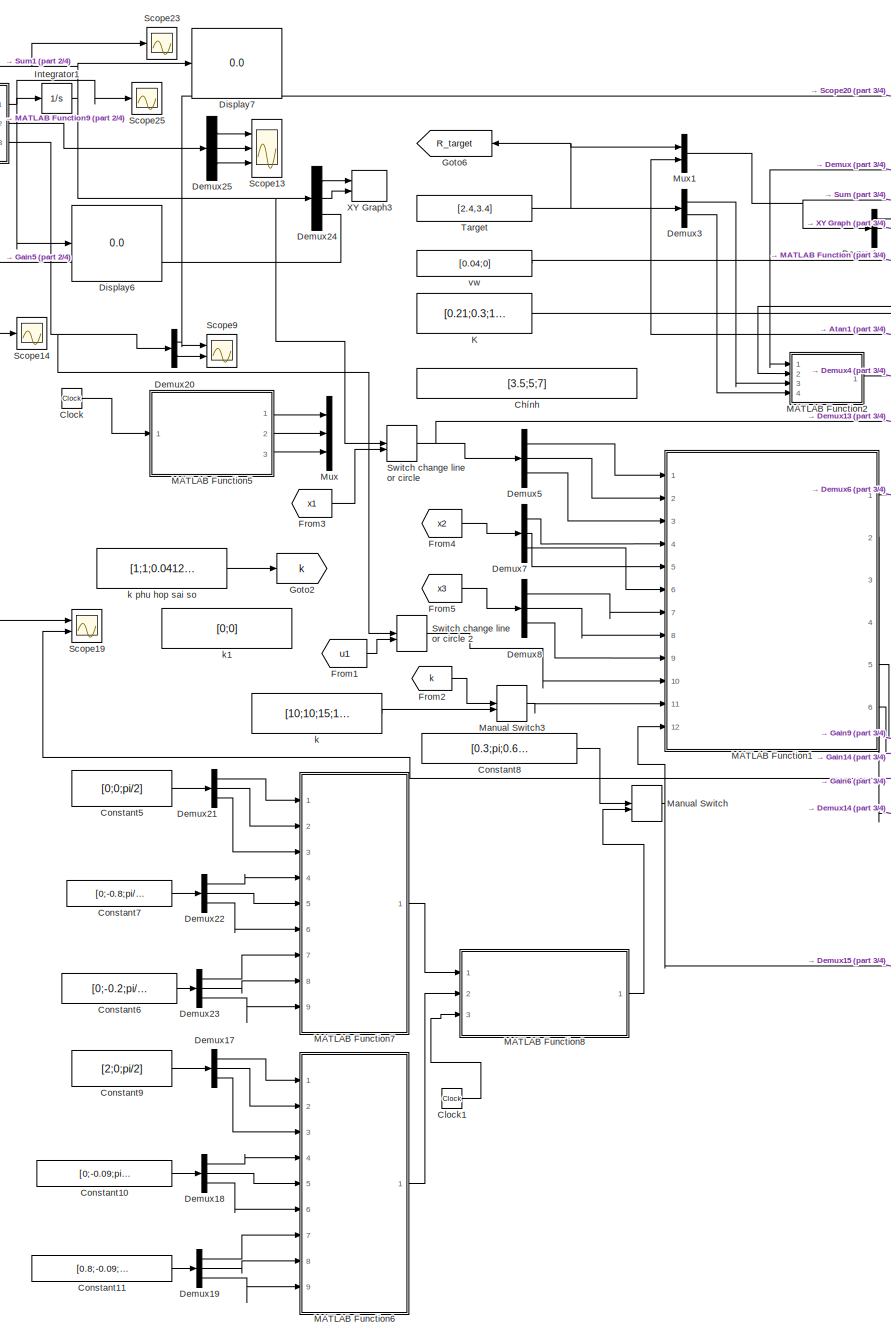
[diagram: root canvas - part 1/4, center side, full height]
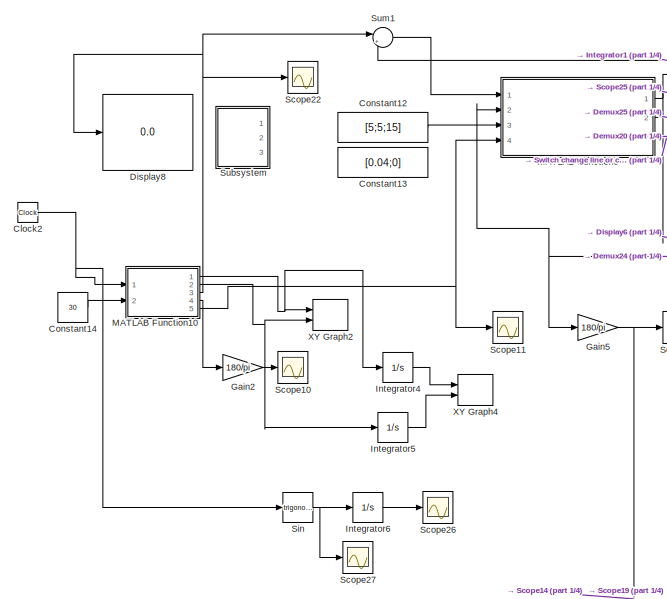
[diagram: root canvas - part 2/4, top left region]
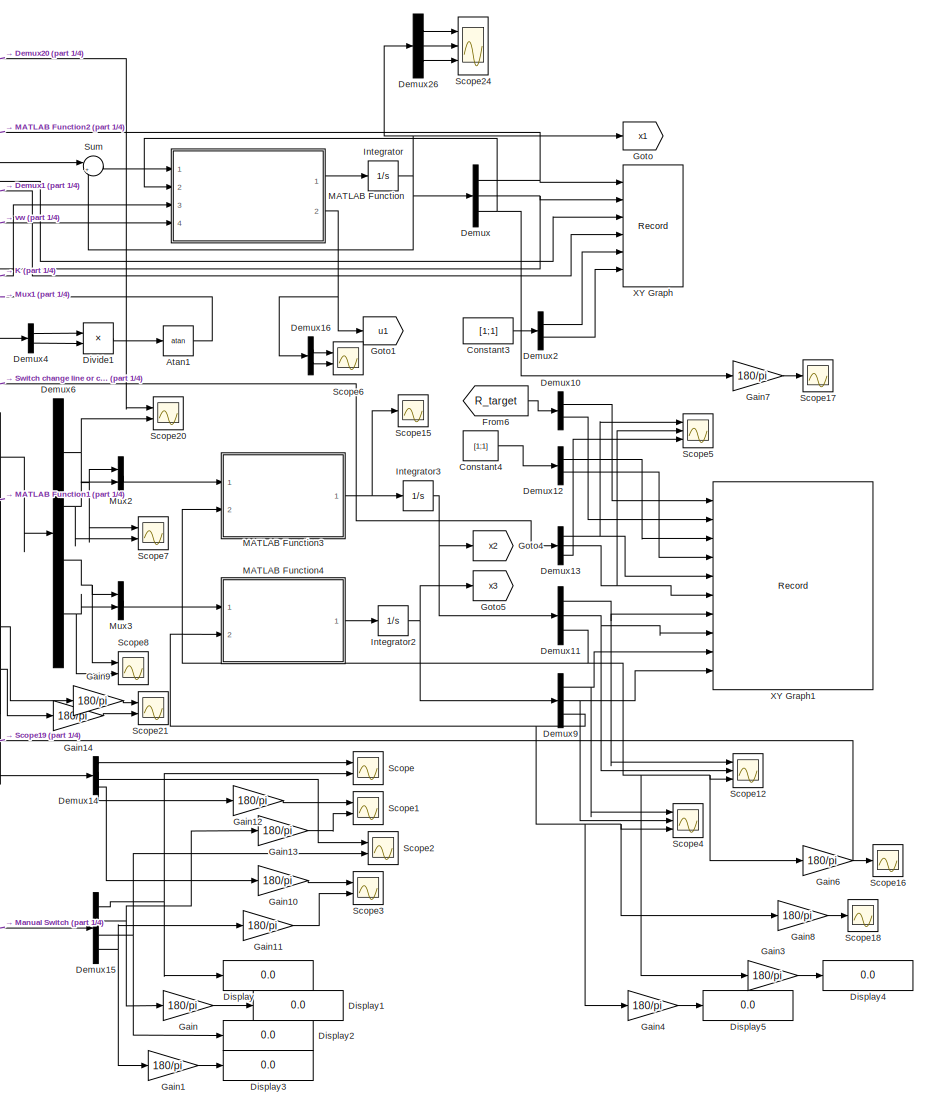
[diagram: root canvas - part 3/4, right side, full height]
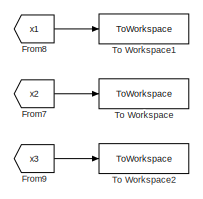
[diagram: root canvas - part 4/4, middle right region]
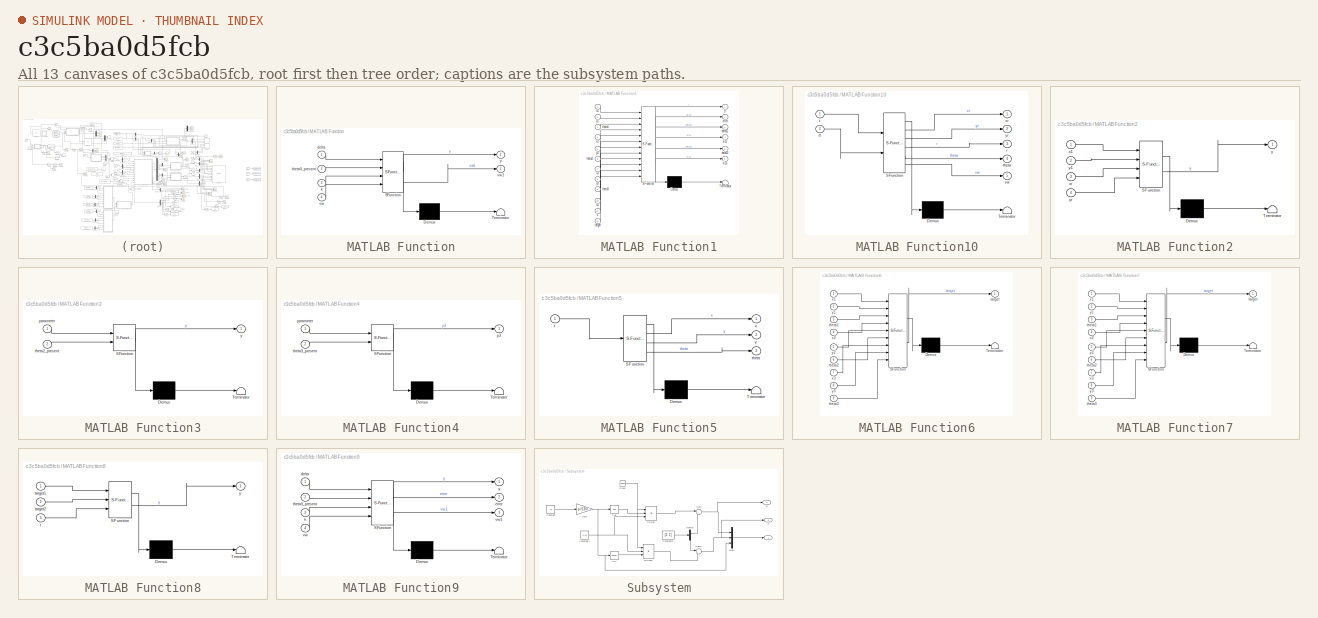
[diagram: thumbnail index - all 13 canvases of the model, root first then tree order]
MODEL slx_c3c5ba0d5fcb
KIND model
CONFIG AbsTol = auto
CONFIG EnableMultiTasking = off
CONFIG FixedStep = 0.01
CONFIG MaxStep = auto
CONFIG MinStep = auto
CONFIG RelTol = 1e-3
CONFIG SampleTimeConstraint = Unconstrained
CONFIG SolverName = FixedStepAuto
CONFIG StartTime = 0.0
CONFIG StopTime = 40
BLOCK [Trigonometry] Atan1
  Operator = atan
  Ports = [1, 1]
BLOCK [Constant] Chính
  Value = [3.5;5;7]
BLOCK [Clock] Clock
BLOCK [Clock] Clock1
BLOCK [Clock] Clock2
BLOCK [Constant] Constant10
  Value = [0;-0.09;pi/2]
BLOCK [Constant] Constant11
  Value = [0.8;-0.09;pi/2]
BLOCK [Constant] Constant12
  Value = [5;5;15]
BLOCK [Constant] Constant13
  Value = [0.04;0]
BLOCK [Constant] Constant14
  Value = 30
BLOCK [Constant] Constant3
  Value = [1;1]
BLOCK [Constant] Constant4
  Value = [1;1]
BLOCK [Constant] Constant5
  Value = [0;0;pi/2]
BLOCK [Constant] Constant6
  Value = [0;-0.2;pi/2]
BLOCK [Constant] Constant7
  Value = [0;-0.8;pi/2]
BLOCK [Constant] Constant8
  Value = [0.3;pi;0.6;0.21]
BLOCK [Constant] Constant9
  Value = [2;0;pi/2]
BLOCK [Demux] Demux
  Outputs = 3
  Ports = [1, 3]
BLOCK [Demux] Demux1
  Outputs = 3
  Ports = [1, 3]
BLOCK [Demux] Demux10
  Outputs = 2
  Ports = [1, 2]
BLOCK [Demux] Demux11
  Outputs = 3
  Ports = [1, 3]
BLOCK [Demux] Demux12
  Outputs = 2
  Ports = [1, 2]
BLOCK [Demux] Demux13
  Outputs = 3
  Ports = [1, 3]
BLOCK [Demux] Demux14
  Ports = [1, 4]
BLOCK [Demux] Demux15
  Ports = [1, 4]
BLOCK [Demux] Demux16
  Outputs = 2
  Ports = [1, 2]
BLOCK [Demux] Demux17
  Outputs = 3
  Ports = [1, 3]
BLOCK [Demux] Demux18
  Outputs = 3
  Ports = [1, 3]
BLOCK [Demux] Demux19
  Outputs = 3
  Ports = [1, 3]
BLOCK [Demux] Demux2
  Outputs = 2
  Ports = [1, 2]
BLOCK [Demux] Demux20
  Outputs = 2
  Ports = [1, 2]
BLOCK [Demux] Demux21
  Outputs = 3
  Ports = [1, 3]
BLOCK [Demux] Demux22
  Outputs = 3
  Ports = [1, 3]
BLOCK [Demux] Demux23
  Outputs = 3
  Ports = [1, 3]
BLOCK [Demux] Demux24
  Outputs = 3
  Ports = [1, 3]
BLOCK [Demux] Demux25
  Outputs = 3
  Ports = [1, 3]
BLOCK [Demux] Demux26
  Outputs = 3
  Ports = [1, 3]
BLOCK [Demux] Demux3
  Outputs = 2
  Ports = [1, 2]
BLOCK [Demux] Demux4
  Outputs = 2
  Ports = [1, 2]
BLOCK [Demux] Demux5
  Outputs = 3
  Ports = [1, 3]
BLOCK [Demux] Demux6
  Ports = [1, 4]
BLOCK [Demux] Demux7
  Outputs = 3
  Ports = [1, 3]
BLOCK [Demux] Demux8
  Outputs = 3
  Ports = [1, 3]
BLOCK [Demux] Demux9
  Outputs = 3
  Ports = [1, 3]
BLOCK [Display] Display
  Decimation = 1
  Ports = [1]
BLOCK [Display] Display1
  Decimation = 1
  Ports = [1]
BLOCK [Display] Display2
  Decimation = 1
  Ports = [1]
BLOCK [Display] Display3
  Decimation = 1
  Ports = [1]
BLOCK [Display] Display4
  Decimation = 1
  Ports = [1]
BLOCK [Display] Display5
  Decimation = 1
  Ports = [1]
BLOCK [Display] Display6
  Decimation = 1
  Ports = [1]
BLOCK [Display] Display7
  Decimation = 1
  Ports = [1]
BLOCK [Display] Display8
  Decimation = 1
  Ports = [1]
BLOCK [Product] Divide1
  Inputs = /*
  Ports = [2, 1]
BLOCK [From] From1
  GotoTag = u1
BLOCK [From] From2
  GotoTag = k
BLOCK [From] From3
  GotoTag = x1
BLOCK [From] From4
  GotoTag = x2
BLOCK [From] From5
  GotoTag = x3
BLOCK [From] From6
  GotoTag = R_target
BLOCK [From] From7
  GotoTag = x2
BLOCK [From] From8
  GotoTag = x1
BLOCK [From] From9
  GotoTag = x3
BLOCK [Gain] Gain
  Gain = 180/pi
BLOCK [Gain] Gain1
  Gain = 180/pi
BLOCK [Gain] Gain10
  Gain = 180/pi
BLOCK [Gain] Gain11
  Gain = 180/pi
BLOCK [Gain] Gain12
  Gain = 180/pi
BLOCK [Gain] Gain13
  Gain = 180/pi
BLOCK [Gain] Gain14
  Gain = 180/pi
BLOCK [Gain] Gain2
  Gain = 180/pi
BLOCK [Gain] Gain3
  Gain = 180/pi
BLOCK [Gain] Gain4
  Gain = 180/pi
BLOCK [Gain] Gain5
  Gain = 180/pi
BLOCK [Gain] Gain6
  Gain = 180/pi
BLOCK [Gain] Gain7
  Gain = 180/pi
BLOCK [Gain] Gain8
  Gain = 180/pi
BLOCK [Gain] Gain9
  Gain = 180/pi
BLOCK [Goto] Goto
  GotoTag = x1
BLOCK [Goto] Goto1
  GotoTag = u1
BLOCK [Goto] Goto2
  GotoTag = k
BLOCK [Goto] Goto4
  GotoTag = x2
BLOCK [Goto] Goto5
  GotoTag = x3
BLOCK [Goto] Goto6
  GotoTag = R_target
  NameLocation = top
BLOCK [Integrator] Integrator
  InitialCondition = [1;1;atan(2.4/1.4)]
  Ports = [1, 1]
BLOCK [Integrator] Integrator1
  InitialCondition = [3;0;pi/2]
  Ports = [1, 1]
BLOCK [Integrator] Integrator2
  InitialCondition = [0.8;-0.09;pi/2]
  Ports = [1, 1]
BLOCK [Integrator] Integrator3
  InitialCondition = [0.1;-0.09;pi/2]
  Ports = [1, 1]
BLOCK [Integrator] Integrator4
  InitialCondition = [0;0]
  Ports = [1, 1]
BLOCK [Integrator] Integrator5
  InitialCondition = [0;0]
  Ports = [1, 1]
BLOCK [Integrator] Integrator6
  InitialCondition = [0;0]
  Ports = [1, 1]
BLOCK [Constant] K
  Value = [0.21;0.3;1.25]
BLOCK [SubSystem] MATLAB Function
  ErrorFcn = Stateflow.Translate.translate
  PermitHierarchicalResolution = ExplicitOnly
  Ports = [4, 2]
  RequestExecContextInheritance = off
  SFBlockType = MATLAB Function
  TreatAsAtomicUnit = on
BLOCK [Demux] MATLAB Function/ Demux 
  Outputs = 1
  Ports = [1, 1]
BLOCK [S-Function] MATLAB Function/ SFunction 
  EnableBusSupport = on
  FunctionName = sf_sfun
  PortCounts = [4 3]
  Ports = [4, 3]
  SFcnIsStateOwnerBlock = off
  SFunctionDeploymentMode = off
  Tag = Stateflow S-Function 2
BLOCK [Terminator] MATLAB Function/ Terminator 
BLOCK [Inport] MATLAB Function/delta
BLOCK [Inport] MATLAB Function/k
  Port = 3
BLOCK [Inport] MATLAB Function/theta0_present
  Port = 2
BLOCK [Inport] MATLAB Function/vw
  Port = 4
BLOCK [Outport] MATLAB Function/vw1
  Port = 2
BLOCK [Outport] MATLAB Function/y
  VectorParamsAs1DForOutWhenUnconnected = off
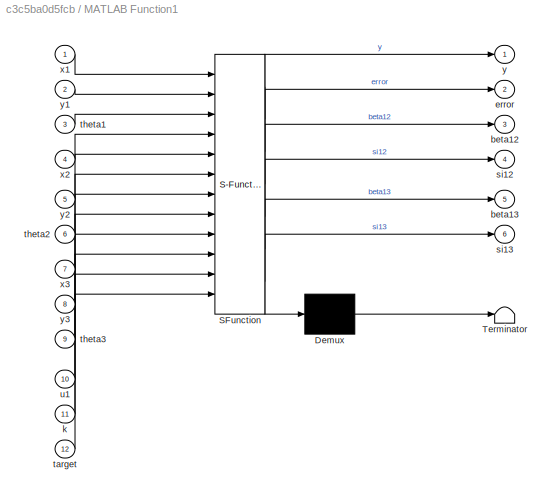
BLOCK [SubSystem] MATLAB Function1
  ErrorFcn = Stateflow.Translate.translate
  PermitHierarchicalResolution = ExplicitOnly
  Ports = [12, 6]
  RequestExecContextInheritance = off
  SFBlockType = MATLAB Function
  TreatAsAtomicUnit = on
BLOCK [Demux] MATLAB Function1/ Demux 
  Outputs = 1
  Ports = [1, 1]
BLOCK [S-Function] MATLAB Function1/ SFunction 
  EnableBusSupport = on
  FunctionName = sf_sfun
  PortCounts = [12 7]
  Ports = [12, 7]
  SFcnIsStateOwnerBlock = off
  SFunctionDeploymentMode = off
  Tag = Stateflow S-Function 1
BLOCK [Terminator] MATLAB Function1/ Terminator 
BLOCK [Outport] MATLAB Function1/beta12
  Port = 3
BLOCK [Outport] MATLAB Function1/beta13
  Port = 5
BLOCK [Outport] MATLAB Function1/error
  Port = 2
BLOCK [Inport] MATLAB Function1/k
  Port = 11
BLOCK [Outport] MATLAB Function1/si12
  Port = 4
BLOCK [Outport] MATLAB Function1/si13
  Port = 6
BLOCK [Inport] MATLAB Function1/target
  Port = 12
BLOCK [Inport] MATLAB Function1/theta1
  Port = 3
BLOCK [Inport] MATLAB Function1/theta2
  Port = 6
BLOCK [Inport] MATLAB Function1/theta3
  Port = 9
BLOCK [Inport] MATLAB Function1/u1
  Port = 10
BLOCK [Inport] MATLAB Function1/x1
BLOCK [Inport] MATLAB Function1/x2
  Port = 4
BLOCK [Inport] MATLAB Function1/x3
  Port = 7
BLOCK [Outport] MATLAB Function1/y
  VectorParamsAs1DForOutWhenUnconnected = off
BLOCK [Inport] MATLAB Function1/y1
  Port = 2
BLOCK [Inport] MATLAB Function1/y2
  Port = 5
BLOCK [Inport] MATLAB Function1/y3
  Port = 8
BLOCK [SubSystem] MATLAB Function10
  ErrorFcn = Stateflow.Translate.translate
  PermitHierarchicalResolution = ExplicitOnly
  Ports = [2, 5]
  RequestExecContextInheritance = off
  SFBlockType = MATLAB Function
  TreatAsAtomicUnit = on
BLOCK [Demux] MATLAB Function10/ Demux 
  Outputs = 1
  Ports = [1, 1]
BLOCK [S-Function] MATLAB Function10/ SFunction 
  EnableBusSupport = on
  FunctionName = sf_sfun
  PortCounts = [2 6]
  Ports = [2, 6]
  SFcnIsStateOwnerBlock = off
  SFunctionDeploymentMode = off
  Tag = Stateflow S-Function 9
BLOCK [Terminator] MATLAB Function10/ Terminator 
BLOCK [Outport] MATLAB Function10/r
  Port = 3
BLOCK [Inport] MATLAB Function10/t
BLOCK [Inport] MATLAB Function10/tf
  Port = 2
BLOCK [Outport] MATLAB Function10/theta
  Port = 4
BLOCK [Outport] MATLAB Function10/vw
  Port = 5
BLOCK [Outport] MATLAB Function10/xr
BLOCK [Outport] MATLAB Function10/yr
  Port = 2
BLOCK [SubSystem] MATLAB Function2
  ErrorFcn = Stateflow.Translate.translate
  PermitHierarchicalResolution = ExplicitOnly
  Ports = [4, 1]
  RequestExecContextInheritance = off
  SFBlockType = MATLAB Function
  TreatAsAtomicUnit = on
BLOCK [Demux] MATLAB Function2/ Demux 
  Outputs = 1
  Ports = [1, 1]
BLOCK [S-Function] MATLAB Function2/ SFunction 
  EnableBusSupport = on
  FunctionName = sf_sfun
  PortCounts = [4 2]
  Ports = [4, 2]
  SFcnIsStateOwnerBlock = off
  SFunctionDeploymentMode = off
  Tag = Stateflow S-Function 3
BLOCK [Terminator] MATLAB Function2/ Terminator 
BLOCK [Inport] MATLAB Function2/x1
BLOCK [Inport] MATLAB Function2/xr
  Port = 3
BLOCK [Outport] MATLAB Function2/y
  VectorParamsAs1DForOutWhenUnconnected = off
BLOCK [Inport] MATLAB Function2/y1
  Port = 2
BLOCK [Inport] MATLAB Function2/yr
  Port = 4
BLOCK [SubSystem] MATLAB Function3
  ErrorFcn = Stateflow.Translate.translate
  PermitHierarchicalResolution = ExplicitOnly
  Ports = [2, 1]
  RequestExecContextInheritance = off
  SFBlockType = MATLAB Function
  TreatAsAtomicUnit = on
BLOCK [Demux] MATLAB Function3/ Demux 
  Outputs = 1
  Ports = [1, 1]
BLOCK [S-Function] MATLAB Function3/ SFunction 
  EnableBusSupport = on
  FunctionName = sf_sfun
  PortCounts = [2 2]
  Ports = [2, 2]
  SFcnIsStateOwnerBlock = off
  SFunctionDeploymentMode = off
  Tag = Stateflow S-Function 4
BLOCK [Terminator] MATLAB Function3/ Terminator 
BLOCK [Inport] MATLAB Function3/parameter
BLOCK [Inport] MATLAB Function3/theta2_present
  Port = 2
BLOCK [Outport] MATLAB Function3/y
  VectorParamsAs1DForOutWhenUnconnected = off
BLOCK [SubSystem] MATLAB Function4
  ErrorFcn = Stateflow.Translate.translate
  PermitHierarchicalResolution = ExplicitOnly
  Ports = [2, 1]
  RequestExecContextInheritance = off
  SFBlockType = MATLAB Function
  TreatAsAtomicUnit = on
BLOCK [Demux] MATLAB Function4/ Demux 
  Outputs = 1
  Ports = [1, 1]
BLOCK [S-Function] MATLAB Function4/ SFunction 
  EnableBusSupport = on
  FunctionName = sf_sfun
  PortCounts = [2 2]
  Ports = [2, 2]
  SFcnIsStateOwnerBlock = off
  SFunctionDeploymentMode = off
  Tag = Stateflow S-Function 5
BLOCK [Terminator] MATLAB Function4/ Terminator 
BLOCK [Inport] MATLAB Function4/parameter
BLOCK [Inport] MATLAB Function4/theta3_present
  Port = 2
BLOCK [Outport] MATLAB Function4/y3
  VectorParamsAs1DForOutWhenUnconnected = off
BLOCK [SubSystem] MATLAB Function5
  ErrorFcn = Stateflow.Translate.translate
  PermitHierarchicalResolution = ExplicitOnly
  Ports = [1, 3]
  RequestExecContextInheritance = off
  SFBlockType = MATLAB Function
  TreatAsAtomicUnit = on
BLOCK [Demux] MATLAB Function5/ Demux 
  Outputs = 1
  Ports = [1, 1]
BLOCK [S-Function] MATLAB Function5/ SFunction 
  EnableBusSupport = on
  FunctionName = sf_sfun
  PortCounts = [1 4]
  Ports = [1, 4]
  SFcnIsStateOwnerBlock = off
  SFunctionDeploymentMode = off
  Tag = Stateflow S-Function 6
BLOCK [Terminator] MATLAB Function5/ Terminator 
BLOCK [Inport] MATLAB Function5/t
BLOCK [Outport] MATLAB Function5/theta
  Port = 3
BLOCK [Outport] MATLAB Function5/x
BLOCK [Outport] MATLAB Function5/y
  Port = 2
  VectorParamsAs1DForOutWhenUnconnected = off
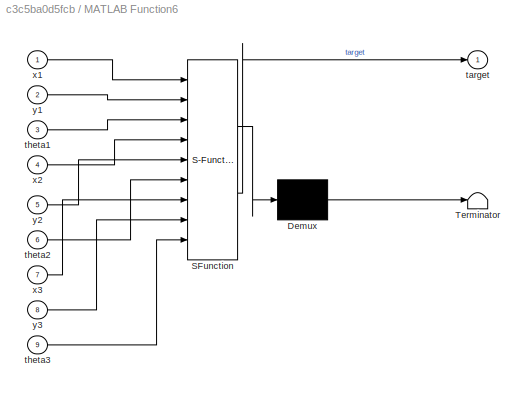
BLOCK [SubSystem] MATLAB Function6
  ErrorFcn = Stateflow.Translate.translate
  PermitHierarchicalResolution = ExplicitOnly
  Ports = [9, 1]
  RequestExecContextInheritance = off
  SFBlockType = MATLAB Function
  TreatAsAtomicUnit = on
BLOCK [Demux] MATLAB Function6/ Demux 
  Outputs = 1
  Ports = [1, 1]
BLOCK [S-Function] MATLAB Function6/ SFunction 
  EnableBusSupport = on
  FunctionName = sf_sfun
  PortCounts = [9 2]
  Ports = [9, 2]
  SFcnIsStateOwnerBlock = off
  SFunctionDeploymentMode = off
  Tag = Stateflow S-Function 7
BLOCK [Terminator] MATLAB Function6/ Terminator 
BLOCK [Outport] MATLAB Function6/target
  VectorParamsAs1DForOutWhenUnconnected = off
BLOCK [Inport] MATLAB Function6/theta1
  Port = 3
BLOCK [Inport] MATLAB Function6/theta2
  Port = 6
BLOCK [Inport] MATLAB Function6/theta3
  Port = 9
BLOCK [Inport] MATLAB Function6/x1
BLOCK [Inport] MATLAB Function6/x2
  Port = 4
BLOCK [Inport] MATLAB Function6/x3
  Port = 7
BLOCK [Inport] MATLAB Function6/y1
  Port = 2
BLOCK [Inport] MATLAB Function6/y2
  Port = 5
BLOCK [Inport] MATLAB Function6/y3
  Port = 8
BLOCK [SubSystem] MATLAB Function7
  ErrorFcn = Stateflow.Translate.translate
  PermitHierarchicalResolution = ExplicitOnly
  Ports = [9, 1]
  RequestExecContextInheritance = off
  SFBlockType = MATLAB Function
  TreatAsAtomicUnit = on
BLOCK [Demux] MATLAB Function7/ Demux 
  Outputs = 1
  Ports = [1, 1]
BLOCK [S-Function] MATLAB Function7/ SFunction 
  EnableBusSupport = on
  FunctionName = sf_sfun
  PortCounts = [9 2]
  Ports = [9, 2]
  SFcnIsStateOwnerBlock = off
  SFunctionDeploymentMode = off
  Tag = Stateflow S-Function 11
BLOCK [Terminator] MATLAB Function7/ Terminator 
BLOCK [Outport] MATLAB Function7/target
  VectorParamsAs1DForOutWhenUnconnected = off
BLOCK [Inport] MATLAB Function7/theta1
  Port = 3
BLOCK [Inport] MATLAB Function7/theta2
  Port = 6
BLOCK [Inport] MATLAB Function7/theta3
  Port = 9
BLOCK [Inport] MATLAB Function7/x1
BLOCK [Inport] MATLAB Function7/x2
  Port = 4
BLOCK [Inport] MATLAB Function7/x3
  Port = 7
BLOCK [Inport] MATLAB Function7/y1
  Port = 2
BLOCK [Inport] MATLAB Function7/y2
  Port = 5
BLOCK [Inport] MATLAB Function7/y3
  Port = 8
BLOCK [SubSystem] MATLAB Function8
  ErrorFcn = Stateflow.Translate.translate
  PermitHierarchicalResolution = ExplicitOnly
  Ports = [3, 1]
  RequestExecContextInheritance = off
  SFBlockType = MATLAB Function
  TreatAsAtomicUnit = on
BLOCK [Demux] MATLAB Function8/ Demux 
  Outputs = 1
  Ports = [1, 1]
BLOCK [S-Function] MATLAB Function8/ SFunction 
  EnableBusSupport = on
  FunctionName = sf_sfun
  PortCounts = [3 2]
  Ports = [3, 2]
  SFcnIsStateOwnerBlock = off
  SFunctionDeploymentMode = off
  Tag = Stateflow S-Function 8
BLOCK [Terminator] MATLAB Function8/ Terminator 
BLOCK [Inport] MATLAB Function8/t
  Port = 3
BLOCK [Inport] MATLAB Function8/target1
BLOCK [Inport] MATLAB Function8/target2
  Port = 2
BLOCK [Outport] MATLAB Function8/y
BLOCK [SubSystem] MATLAB Function9
  ErrorFcn = Stateflow.Translate.translate
  PermitHierarchicalResolution = ExplicitOnly
  Ports = [4, 3]
  RequestExecContextInheritance = off
  SFBlockType = MATLAB Function
  TreatAsAtomicUnit = on
BLOCK [Demux] MATLAB Function9/ Demux 
  Outputs = 1
  Ports = [1, 1]
BLOCK [S-Function] MATLAB Function9/ SFunction 
  EnableBusSupport = on
  FunctionName = sf_sfun
  PortCounts = [4 4]
  Ports = [4, 4]
  SFcnIsStateOwnerBlock = off
  SFunctionDeploymentMode = off
  Tag = Stateflow S-Function 10
BLOCK [Terminator] MATLAB Function9/ Terminator 
BLOCK [Inport] MATLAB Function9/delta
BLOCK [Outport] MATLAB Function9/error
  Port = 2
BLOCK [Inport] MATLAB Function9/k
  Port = 3
BLOCK [Inport] MATLAB Function9/theta0_present
  Port = 2
BLOCK [Inport] MATLAB Function9/vw
  Port = 4
BLOCK [Outport] MATLAB Function9/vw1
  Port = 3
BLOCK [Outport] MATLAB Function9/y
BLOCK [ManualSwitch] Manual Switch
  CurrentSetting = 0
BLOCK [ManualSwitch] Manual Switch3
  CurrentSetting = 0
BLOCK [Mux] Mux
  DisplayOption = bar
  Inputs = 3
  Ports = [3, 1]
BLOCK [Mux] Mux1
  DisplayOption = bar
  Inputs = 2
  Ports = [2, 1]
BLOCK [Mux] Mux2
  DisplayOption = bar
  Inputs = 2
  Ports = [2, 1]
BLOCK [Mux] Mux3
  DisplayOption = bar
  Inputs = 2
  Ports = [2, 1]
BLOCK [Scope] Scope
  Floating = off
  NumInputPorts = 2
  Ports = [2]
  ScopeSpecificationString = Simulink.scopes.TimeScopeBlockCfg('CurrentConfiguration', extmgr.ConfigurationSet(extmgr.Configuration('Core','General UI',true),extmgr.Configuration('Core','Source UI',true),extmgr.Configuration('Sources','WiredSimulink',true,'DataLoggingVariableName','ScopeData1'),extmgr.Configuration('Visuals','Time Domain',true,'SerializedDisplays',{struct('MinYLimReal','1.8793','MaxYLimReal','3.01341','YLabel...<+1447ch>
BLOCK [Scope] Scope1
  Floating = off
  NumInputPorts = 2
  Ports = [2]
  ScopeSpecificationString = Simulink.scopes.TimeScopeBlockCfg('CurrentConfiguration', extmgr.ConfigurationSet(extmgr.Configuration('Core','General UI',true),extmgr.Configuration('Core','Source UI',true),extmgr.Configuration('Sources','WiredSimulink',true,'DataLoggingVariableName','ScopeData2'),extmgr.Configuration('Visuals','Time Domain',true,'SerializedDisplays',{struct('MinYLimReal','88.7362','MaxYLimReal','93.69292','YLab...<+1453ch>
BLOCK [Scope] Scope10
  Floating = off
  NumInputPorts = 1
  Ports = [1]
  ScopeSpecificationString = Simulink.scopes.TimeScopeBlockCfg('CurrentConfiguration', extmgr.ConfigurationSet(extmgr.Configuration('Core','General UI',true),extmgr.Configuration('Core','Source UI',true),extmgr.Configuration('Sources','WiredSimulink',true,'DataLoggingVariableName','ScopeData4'),extmgr.Configuration('Visuals','Time Domain',true,'SerializedDisplays',{struct('MinYLimReal','45.00000','MaxYLimReal','495.00000','YL...<+1374ch>
BLOCK [Scope] Scope11
  Floating = off
  NumInputPorts = 1
  Ports = [1]
  ScopeSpecificationString = Simulink.scopes.TimeScopeBlockCfg('CurrentConfiguration', extmgr.ConfigurationSet(extmgr.Configuration('Core','General UI',true),extmgr.Configuration('Core','Source UI',true),extmgr.Configuration('Sources','WiredSimulink',true,'DataLoggingVariableName','ScopeData2'),extmgr.Configuration('Visuals','Time Domain',true,'SerializedDisplays',{struct('MinYLimReal','0.07854','MaxYLimReal','1.38754','YLabe...<+1481ch>
BLOCK [Scope] Scope12
  Floating = off
  NumInputPorts = 3
  Ports = [3]
  ScopeSpecificationString = Simulink.scopes.TimeScopeBlockCfg('CurrentConfiguration', extmgr.ConfigurationSet(extmgr.Configuration('Core','General UI',true),extmgr.Configuration('Core','Source UI',true),extmgr.Configuration('Sources','WiredSimulink',true,'DataLoggingVariableName','ScopeData1'),extmgr.Configuration('Visuals','Time Domain',true,'SerializedDisplays',{struct('MinYLimReal','-0.64294','MaxYLimReal','4.04423','YLab...<+1472ch>
BLOCK [Scope] Scope13
  Floating = off
  NumInputPorts = 3
  Ports = [3]
  ScopeSpecificationString = Simulink.scopes.TimeScopeBlockCfg('CurrentConfiguration', extmgr.ConfigurationSet(extmgr.Configuration('Core','General UI',true),extmgr.Configuration('Core','Source UI',true),extmgr.Configuration('Sources','WiredSimulink',true,'DataLoggingVariableName','ScopeData1'),extmgr.Configuration('Visuals','Time Domain',true,'SerializedDisplays',{struct('MinYLimReal','-3.55629','MaxYLimReal','2.00659','YLab...<+1392ch>
BLOCK [Scope] Scope14
  Floating = off
  NameLocation = right
  NumInputPorts = 1
  Ports = [1]
  ScopeSpecificationString = Simulink.scopes.TimeScopeBlockCfg('CurrentConfiguration', extmgr.ConfigurationSet(extmgr.Configuration('Core','General UI',true),extmgr.Configuration('Core','Source UI',true),extmgr.Configuration('Sources','WiredSimulink',true,'DataLoggingVariableName','ScopeData2'),extmgr.Configuration('Visuals','Time Domain',true,'SerializedDisplays',{struct('MinYLimReal','-3.95361','MaxYLimReal','501.15953','YL...<+1401ch>
BLOCK [Scope] Scope15
  Floating = off
  NumInputPorts = 1
  Ports = [1]
  ScopeSpecificationString = Simulink.scopes.TimeScopeBlockCfg('CurrentConfiguration', extmgr.ConfigurationSet(extmgr.Configuration('Core','General UI',true),extmgr.Configuration('Core','Source UI',true),extmgr.Configuration('Sources','WiredSimulink',true,'DataLoggingVariableName','ScopeData1'),extmgr.Configuration('Visuals','Time Domain',true,'SerializedDisplays',{struct('MinYLimReal','-63.15636','MaxYLimReal','333.6197','YL...<+1500ch>
BLOCK [Scope] Scope16
  Floating = off
  NumInputPorts = 1
  Ports = [1]
  ScopeSpecificationString = Simulink.scopes.TimeScopeBlockCfg('CurrentConfiguration', extmgr.ConfigurationSet(extmgr.Configuration('Core','General UI',true),extmgr.Configuration('Core','Source UI',true),extmgr.Configuration('Sources','WiredSimulink',true,'DataLoggingVariableName','ScopeData2'),extmgr.Configuration('Visuals','Time Domain',true,'SerializedDisplays',{struct('MinYLimReal','-272.29924','MaxYLimReal','130.25547','...<+1455ch>
BLOCK [Scope] Scope17
  Floating = off
  NumInputPorts = 1
  Ports = [1]
  ScopeSpecificationString = Simulink.scopes.TimeScopeBlockCfg('CurrentConfiguration', extmgr.ConfigurationSet(extmgr.Configuration('Core','General UI',true),extmgr.Configuration('Core','Source UI',true),extmgr.Configuration('Sources','WiredSimulink',true,'DataLoggingVariableName','ScopeData3'),extmgr.Configuration('Visuals','Time Domain',true,'SerializedDisplays',{struct('MinYLimReal','59.7435628364706','MaxYLimReal','59.743...<+1459ch>
BLOCK [Scope] Scope18
  Floating = off
  NumInputPorts = 1
  Ports = [1]
  ScopeSpecificationString = Simulink.scopes.TimeScopeBlockCfg('CurrentConfiguration', extmgr.ConfigurationSet(extmgr.Configuration('Core','General UI',true),extmgr.Configuration('Core','Source UI',true),extmgr.Configuration('Sources','WiredSimulink',true,'DataLoggingVariableName','ScopeData4'),extmgr.Configuration('Visuals','Time Domain',true,'SerializedDisplays',{struct('MinYLimReal','-15615391.36692','MaxYLimReal','4609000...<+1462ch>
BLOCK [Scope] Scope19
  Floating = off
  NumInputPorts = 2
  Ports = [2]
  ScopeSpecificationString = Simulink.scopes.TimeScopeBlockCfg('CurrentConfiguration', extmgr.ConfigurationSet(extmgr.Configuration('Core','General UI',true),extmgr.Configuration('Core','Source UI',true),extmgr.Configuration('Sources','WiredSimulink',true,'DataLoggingVariableName','ScopeData5'),extmgr.Configuration('Visuals','Time Domain',true,'SerializedDisplays',{struct('MinYLimReal','-68.57545','MaxYLimReal','511.51957','Y...<+1436ch>
BLOCK [Scope] Scope2
  Floating = off
  NumInputPorts = 2
  Ports = [2]
  ScopeSpecificationString = Simulink.scopes.TimeScopeBlockCfg('CurrentConfiguration', extmgr.ConfigurationSet(extmgr.Configuration('Core','General UI',true),extmgr.Configuration('Core','Source UI',true),extmgr.Configuration('Sources','WiredSimulink',true,'DataLoggingVariableName','ScopeData3'),extmgr.Configuration('Visuals','Time Domain',true,'SerializedDisplays',{struct('MinYLimReal','1.06727','MaxYLimReal','2.32586','YLabe...<+1451ch>
BLOCK [Scope] Scope20
  Floating = off
  NumInputPorts = 2
  Ports = [2]
  ScopeSpecificationString = Simulink.scopes.TimeScopeBlockCfg('CurrentConfiguration', extmgr.ConfigurationSet(extmgr.Configuration('Core','General UI',true),extmgr.Configuration('Core','Source UI',true),extmgr.Configuration('Sources','WiredSimulink',true,'DataLoggingVariableName','ScopeData6'),extmgr.Configuration('Visuals','Time Domain',true,'SerializedDisplays',{struct('MinYLimReal','0.85043','MaxYLimReal','1.30177','YLabe...<+1421ch>
BLOCK [Scope] Scope21
  Floating = off
  NumInputPorts = 2
  Ports = [2]
  ScopeSpecificationString = Simulink.scopes.TimeScopeBlockCfg('CurrentConfiguration', extmgr.ConfigurationSet(extmgr.Configuration('Core','General UI',true),extmgr.Configuration('Core','Source UI',true),extmgr.Configuration('Sources','WiredSimulink',true,'DataLoggingVariableName','ScopeData7'),extmgr.Configuration('Visuals','Time Domain',true,'SerializedDisplays',{struct('MinYLimReal','-412.01112','MaxYLimReal','985.50188','...<+1461ch>
BLOCK [Scope] Scope22
  Floating = off
  NumInputPorts = 1
  Ports = [1]
  ScopeSpecificationString = Simulink.scopes.TimeScopeBlockCfg('CurrentConfiguration', extmgr.ConfigurationSet(extmgr.Configuration('Core','General UI',true),extmgr.Configuration('Core','Source UI',true),extmgr.Configuration('Sources','WiredSimulink',true,'DataLoggingVariableName','ScopeData1'),extmgr.Configuration('Visuals','Time Domain',true,'SerializedDisplays',{struct('MinYLimReal','-7.73175','MaxYLimReal','9.58573','YLab...<+1428ch>
BLOCK [Scope] Scope23
  Floating = off
  NumInputPorts = 1
  Ports = [1]
  ScopeSpecificationString = Simulink.scopes.TimeScopeBlockCfg('CurrentConfiguration', extmgr.ConfigurationSet(extmgr.Configuration('Core','General UI',true),extmgr.Configuration('Core','Source UI',true),extmgr.Configuration('Sources','WiredSimulink',true,'DataLoggingVariableName','ScopeData2'),extmgr.Configuration('Visuals','Time Domain',true,'SerializedDisplays',{struct('MinYLimReal','-7.73303','MaxYLimReal','9.59844','YLab...<+1436ch>
BLOCK [Scope] Scope24
  Floating = off
  NumInputPorts = 3
  Ports = [3]
  ScopeSpecificationString = Simulink.scopes.TimeScopeBlockCfg('CurrentConfiguration', extmgr.ConfigurationSet(extmgr.Configuration('Core','General UI',true),extmgr.Configuration('Core','Source UI',true),extmgr.Configuration('Sources','WiredSimulink',true,'DataLoggingVariableName','ScopeData1'),extmgr.Configuration('Visuals','Time Domain',true,'SerializedDisplays',{struct('MinYLimReal','0.67951','MaxYLimReal','3.88445','YLabe...<+1422ch>
BLOCK [Scope] Scope25
  Floating = off
  NumInputPorts = 1
  Ports = [1]
  ScopeSpecificationString = Simulink.scopes.TimeScopeBlockCfg('CurrentConfiguration', extmgr.ConfigurationSet(extmgr.Configuration('Core','General UI',true),extmgr.Configuration('Core','Source UI',true),extmgr.Configuration('Sources','WiredSimulink',true,'DataLoggingVariableName','ScopeData1'),extmgr.Configuration('Visuals','Time Domain',true,'SerializedDisplays',{struct('MinYLimReal','-21.80897','MaxYLimReal','9.87956','YLa...<+1506ch>
BLOCK [Scope] Scope26
  Floating = off
  NumInputPorts = 1
  Ports = [1]
  ScopeSpecificationString = Simulink.scopes.TimeScopeBlockCfg('CurrentConfiguration', extmgr.ConfigurationSet(extmgr.Configuration('Core','General UI',true),extmgr.Configuration('Core','Source UI',true),extmgr.Configuration('Sources','WiredSimulink',true,'DataLoggingVariableName','ScopeData1'),extmgr.Configuration('Visuals','Time Domain',true,'SerializedDisplays',{struct('MinYLimReal','-1.25','MaxYLimReal','1.25','YLabelReal...<+1370ch>
BLOCK [Scope] Scope27
  Floating = off
  NumInputPorts = 1
  Ports = [1]
  ScopeSpecificationString = Simulink.scopes.TimeScopeBlockCfg('CurrentConfiguration', extmgr.ConfigurationSet(extmgr.Configuration('Core','General UI',true),extmgr.Configuration('Core','Source UI',true),extmgr.Configuration('Sources','WiredSimulink',true,'DataLoggingVariableName','ScopeData2'),extmgr.Configuration('Visuals','Time Domain',true,'SerializedDisplays',{struct('MinYLimReal','-1.25','MaxYLimReal','1.25','YLabelReal...<+1344ch>
BLOCK [Scope] Scope3
  Floating = off
  NumInputPorts = 2
  Ports = [2]
  ScopeSpecificationString = Simulink.scopes.TimeScopeBlockCfg('CurrentConfiguration', extmgr.ConfigurationSet(extmgr.Configuration('Core','General UI',true),extmgr.Configuration('Core','Source UI',true),extmgr.Configuration('Sources','WiredSimulink',true,'DataLoggingVariableName','ScopeData4'),extmgr.Configuration('Visuals','Time Domain',true,'SerializedDisplays',{struct('MinYLimReal','88.95911','MaxYLimReal','92.60585','YLa...<+1455ch>
BLOCK [Scope] Scope4
  Floating = off
  NumInputPorts = 3
  Ports = [3]
  ScopeSpecificationString = Simulink.scopes.TimeScopeBlockCfg('CurrentConfiguration', extmgr.ConfigurationSet(extmgr.Configuration('Core','General UI',true),extmgr.Configuration('Core','Source UI',true),extmgr.Configuration('Sources','WiredSimulink',true,'DataLoggingVariableName','ScopeData2'),extmgr.Configuration('Visuals','Time Domain',true,'SerializedDisplays',{struct('MinYLimReal','-7.76704','MaxYLimReal','6.18781','YLab...<+1443ch>
BLOCK [Scope] Scope5
  Floating = off
  NumInputPorts = 3
  Ports = [3]
  ScopeSpecificationString = Simulink.scopes.TimeScopeBlockCfg('CurrentConfiguration', extmgr.ConfigurationSet(extmgr.Configuration('Core','General UI',true),extmgr.Configuration('Core','Source UI',true),extmgr.Configuration('Sources','WiredSimulink',true,'DataLoggingVariableName','ScopeData3'),extmgr.Configuration('Visuals','Time Domain',true,'SerializedDisplays',{struct('MinYLimReal','0.76715','MaxYLimReal','8.80365','YLabe...<+1444ch>
BLOCK [Scope] Scope6
  Floating = off
  NumInputPorts = 2
  Ports = [2]
  ScopeSpecificationString = Simulink.scopes.TimeScopeBlockCfg('CurrentConfiguration', extmgr.ConfigurationSet(extmgr.Configuration('Core','General UI',true),extmgr.Configuration('Core','Source UI',true),extmgr.Configuration('Sources','WiredSimulink',true),extmgr.Configuration('Visuals','Time Domain',true,'SerializedDisplays',{struct('MinYLimReal','-0.07794','MaxYLimReal','0.70142','YLabelReal','','MinYLimMag','0.00000','MaxY...<+1341ch>
BLOCK [Scope] Scope7
  Floating = off
  NumInputPorts = 2
  Ports = [2]
  ScopeSpecificationString = Simulink.scopes.TimeScopeBlockCfg('CurrentConfiguration', extmgr.ConfigurationSet(extmgr.Configuration('Core','General UI',true),extmgr.Configuration('Core','Source UI',true),extmgr.Configuration('Sources','WiredSimulink',true,'DataLoggingVariableName','ScopeData7'),extmgr.Configuration('Visuals','Time Domain',true,'SerializedDisplays',{struct('MinYLimReal','-10.82803','MaxYLimReal','7.45225','YLa...<+1458ch>
BLOCK [Scope] Scope8
  Floating = off
  NumInputPorts = 2
  Ports = [2]
  ScopeSpecificationString = Simulink.scopes.TimeScopeBlockCfg('CurrentConfiguration', extmgr.ConfigurationSet(extmgr.Configuration('Core','General UI',true),extmgr.Configuration('Core','Source UI',true),extmgr.Configuration('Sources','WiredSimulink',true,'DataLoggingVariableName','ScopeData8'),extmgr.Configuration('Visuals','Time Domain',true,'SerializedDisplays',{struct('MinYLimReal','-1346.25979','MaxYLimReal','1472.75001'...<+1476ch>
BLOCK [Scope] Scope9
  Floating = off
  NumInputPorts = 2
  Ports = [2]
  ScopeSpecificationString = Simulink.scopes.TimeScopeBlockCfg('CurrentConfiguration', extmgr.ConfigurationSet(extmgr.Configuration('Core','General UI',true),extmgr.Configuration('Core','Source UI',true),extmgr.Configuration('Sources','WiredSimulink',true,'DataLoggingVariableName','ScopeData1'),extmgr.Configuration('Visuals','Time Domain',true,'SerializedDisplays',{struct('MinYLimReal','-22.00037','MaxYLimReal','11.60215','YL...<+1463ch>
BLOCK [Trigonometry] Sin
  Ports = [1, 1]
BLOCK [SubSystem] Subsystem
  Ports = [0, 3]
  RequestExecContextInheritance = off
BLOCK [Clock] Subsystem/Clock
BLOCK [Constant] Subsystem/Constant
  Value = 45
BLOCK [Constant] Subsystem/Constant1
  Value = 0.04
BLOCK [Constant] Subsystem/Constant2
  Value = [2 1]
BLOCK [Trigonometry] Subsystem/Cos
  Operator = cos
  Ports = [1, 1]
BLOCK [Demux] Subsystem/Demux
  Outputs = 2
  Ports = [1, 2]
BLOCK [Product] Subsystem/Divide
  Inputs = ***
  Ports = [3, 1]
BLOCK [Product] Subsystem/Divide1
  Inputs = ***
  Ports = [3, 1]
BLOCK [Gain] Subsystem/Gain
  Gain = pi/180
BLOCK [Mux] Subsystem/Mux1
  DisplayOption = bar
  Inputs = 3
  Ports = [3, 1]
BLOCK [Trigonometry] Subsystem/Sin
  Ports = [1, 1]
BLOCK [Sum] Subsystem/Sum
  Inputs = |++
  Ports = [2, 1]
BLOCK [Sum] Subsystem/Sum1
  Inputs = |++
  Ports = [2, 1]
BLOCK [Outport] Subsystem/r
BLOCK [Outport] Subsystem/xr
  Port = 2
BLOCK [Outport] Subsystem/yr
  Port = 3
BLOCK [Sum] Sum
  Inputs = |+-
  Ports = [2, 1]
BLOCK [Sum] Sum1
  Inputs = |+-
  Ports = [2, 1]
BLOCK [ManualSwitch] Switch change line or circle
  CurrentSetting = 0
BLOCK [ManualSwitch] Switch change line or circle 2
  CurrentSetting = 0
BLOCK [Constant] Target
  Value = [2.4,3.4]
BLOCK [ToWorkspace] To Workspace
  FixptAsFi = on
  MaxDataPoints = inf
  Ports = [1]
  SampleTime = -1
  VariableName = test_x2
BLOCK [ToWorkspace] To Workspace1
  FixptAsFi = on
  MaxDataPoints = inf
  Ports = [1]
  SampleTime = -1
  VariableName = test_x1
BLOCK [ToWorkspace] To Workspace2
  FixptAsFi = on
  MaxDataPoints = inf
  Ports = [1]
  SampleTime = -1
  VariableName = test_x3
BLOCK [Record] XY Graph
  CompatibilityTag = XY
  FileSettingsInternal = {"entries":[{"content":{"excelSettings":{"content":{},"type":"Streamout.ExcelSettings"}},"type":"Streamout.FileSettingStorage","uuid":"70fd1e76-0798-47bf-acf1-eed4893097b9"}],"packageUris":["http://schema.mathworks.com/mf0/streamout_blocks/R2020a"],"version":"1.0"}
  Layout = [1 1]
  Ports = [6]
  SignalsInternal = {"entries":[{"content":{"signals":[{"content":{"blockPath":["test_ba_xe_2/XY Graph"],"channel":[],"dimensions":[1],"domain":"test_ba_xe_2/XY Graph","lineColor":"#a2142f","plots":[1],"port":1,"sid":[""],"signalID":10247,"signalName":"Demux:1"},"type":"RecordBlkView.Signal","uuid":"22dc617a-e5f8-4a56-a773-12a231c157fd"},{"content":{"blockPath":["test_ba_xe_2/XY Graph"],"channel":[],"dimensions":[1],...<+1523ch>
  VisualizationBindings = {"xyplotplugin":{"info":[{"series":[{"bindingParametersList":[{"parameter":"X-Axis","signalID":10247,"signalName":"Demux:1"},{"parameter":"Y-Axis","signalID":10251,"signalName":"Demux:2"}],"seriesID":55733},{"bindingParametersList":[{"parameter":"X-Axis","signalID":10305,"signalName":"Demux1:1"},{"parameter":"Y-Axis","signalID":10309,"signalName":"Demux1:2"}],"seriesID":7735}],"subplotID":1},{"ser...<+25ch>
BLOCK [Record] XY Graph1
  CompatibilityTag = XY
  FileSettingsInternal = {"entries":[{"content":{"excelSettings":{"content":{},"type":"Streamout.ExcelSettings"}},"type":"Streamout.FileSettingStorage","uuid":"5f21f3b9-ae8d-48b3-8879-12e4856874da"}],"packageUris":["http://schema.mathworks.com/mf0/streamout_blocks/R2020a"],"version":"1.0"}
  Layout = [1 1]
  Ports = [10]
  SignalsInternal = {"entries":[{"content":{"signals":[{"content":{"blockPath":["test_ba_xe_2/XY Graph1"],"channel":[],"dimensions":[1,1],"domain":"test_ba_xe_2/XY Graph1","lineColor":"#64d413","plots":[1],"port":5,"sid":[""],"signalID":10255,"signalName":"Demux13:1"},"type":"RecordBlkView.Signal","uuid":"346042b2-c55a-477c-ac58-653c01ef7587"},{"content":{"blockPath":["test_ba_xe_2/XY Graph1"],"channel":[],"dimension...<+2708ch>
  VisualizationBindings = {"xyplotplugin":{"info":[{"series":[{"bindingParametersList":[{"parameter":"X-Axis","signalID":10263,"signalName":"Demux11:1"},{"parameter":"Y-Axis","signalID":10267,"signalName":"Demux11:2"}],"seriesID":1774},{"bindingParametersList":[{"parameter":"Y-Axis","signalID":10275,"signalName":"Demux9:2"},{"parameter":"X-Axis","signalID":10271,"signalName":"Demux9:1"}],"seriesID":41491},{"bindingParamete...<+261ch>
BLOCK [Record] XY Graph2
  CompatibilityTag = XY
  FileSettingsInternal = {"entries":[{"content":{"excelSettings":{"content":{},"type":"Streamout.ExcelSettings"}},"type":"Streamout.FileSettingStorage","uuid":"ce2218ae-73ce-424a-82e8-631e6707ad33"}],"packageUris":["http://schema.mathworks.com/mf0/streamout_blocks/R2020a"],"version":"1.0"}
  Layout = [1 1]
  Ports = [2]
  SignalsInternal = {"entries":[{"content":{"signals":[{"content":{"blockPath":["test_ba_xe_2/XY Graph2"],"channel":[],"dimensions":[1],"domain":"test_ba_xe_2/XY Graph2","lineColor":"#0072bd","plots":[1],"port":1,"sid":[""],"signalID":10279,"signalName":"MATLAB Function10:1"},"type":"RecordBlkView.Signal","uuid":"4fd544fd-dd5f-40e7-a042-fb5d9c48e3c9"},{"content":{"blockPath":["test_ba_xe_2/XY Graph2"],"channel":[],"d...<+409ch>
  VisualizationBindings = {"xyplotplugin":{"info":[{"series":[{"bindingParametersList":[{"parameter":"X-Axis","signalID":10279,"signalName":"MATLAB Function10:1"},{"parameter":"Y-Axis","signalID":10283,"signalName":"MATLAB Function10:2"}],"seriesID":57375}],"subplotID":1}]}}
BLOCK [Record] XY Graph3
  CompatibilityTag = XY
  FileSettingsInternal = {"entries":[{"content":{"excelSettings":{"content":{},"type":"Streamout.ExcelSettings"}},"type":"Streamout.FileSettingStorage","uuid":"15e6eb0c-fa5f-4cbc-acf3-3ef9025712ff"}],"packageUris":["http://schema.mathworks.com/mf0/streamout_blocks/R2020a"],"version":"1.0"}
  Layout = [1 1]
  Ports = [2]
  SignalsInternal = {"entries":[{"content":{"signals":[{"content":{"blockPath":["test_ba_xe_2/XY Graph3"],"channel":[],"dimensions":[1,1],"domain":"test_ba_xe_2/XY Graph3","lineColor":"#0072bd","plots":[1],"port":1,"sid":[""],"signalID":10287,"signalName":"Demux24:1"},"type":"RecordBlkView.Signal","uuid":"1d0d9f62-fcb1-4517-bbd3-519d39e8a613"},{"content":{"blockPath":["test_ba_xe_2/XY Graph3"],"channel":[],"dimension...<+393ch>
  VisualizationBindings = {"xyplotplugin":{"info":[{"series":[{"bindingParametersList":[{"parameter":"X-Axis","signalID":10287,"signalName":"Demux24:1"},{"parameter":"Y-Axis","signalID":10291,"signalName":"Demux24:2"}],"seriesID":50301}],"subplotID":1}]}}
BLOCK [Record] XY Graph4
  CompatibilityTag = XY
  FileSettingsInternal = {"entries":[{"content":{"excelSettings":{"content":{},"type":"Streamout.ExcelSettings"}},"type":"Streamout.FileSettingStorage","uuid":"44dc336b-df7a-494e-a918-443b50120dff"}],"packageUris":["http://schema.mathworks.com/mf0/streamout_blocks/R2020a"],"version":"1.0"}
  Layout = [1 1]
  Ports = [2]
  SignalsInternal = {"entries":[{"content":{"signals":[{"content":{"blockPath":["test_ba_xe_2/XY Graph4"],"channel":[],"dimensions":[2],"domain":"test_ba_xe_2/XY Graph4","hasChildren":true,"lineColor":"#a2142f","plots":[],"port":1,"sid":[""],"signalID":10295,"signalName":"Integrator4"},"type":"RecordBlkView.Signal","uuid":"7fee5173-5970-4381-a9be-8d21b6e5e72f"},{"content":{"blockPath":["test_ba_xe_2/XY Graph4"],"chan...<+1663ch>
  VisualizationBindings = {"xyplotplugin":{"info":[{"series":[{"bindingParametersList":[{"parameter":"X-Axis","signalID":10296,"signalName":"Integrator4(1)"},{"parameter":"Y-Axis","signalID":10336,"signalName":"Integrator4(2)"}],"seriesID":30388}],"subplotID":1}]}}
BLOCK [Constant] k
  Value = [10;10;15;15]
BLOCK [Constant] k phu hop sai so
  Value = [1;1;0.0412;0.054]
BLOCK [Constant] k1
  Value = [0;0]
BLOCK [Constant] vw
  Value = [0.04;0]
LINE Atan1:1 -> Mux1:2
LINE Clock1:1 -> MATLAB Function8:3
NET Clock2:1 -> MATLAB Function10:1, Sin:1
LINE Clock:1 -> MATLAB Function5:1
LINE Constant10:1 -> Demux18:1
LINE Constant11:1 -> Demux19:1
LINE Constant12:1 -> MATLAB Function9:3
LINE Constant14:1 -> MATLAB Function10:2
LINE Constant3:1 -> Demux2:1
LINE Constant4:1 -> Demux12:1
LINE Constant5:1 -> Demux21:1
LINE Constant6:1 -> Demux23:1
LINE Constant7:1 -> Demux22:1
LINE Constant8:1 -> Manual Switch:1
LINE Constant9:1 -> Demux17:1
LINE Demux10:1 -> XY Graph1:1
LINE Demux10:2 -> XY Graph1:2
NET Demux11:1 -> Scope12:1, XY Graph1:7
NET Demux11:2 -> Scope12:2, XY Graph1:8
NET Demux11:3 -> Gain3:1, Gain6:1, MATLAB Function3:2, Scope12:3
LINE Demux12:1 -> XY Graph1:3
LINE Demux12:2 -> XY Graph1:4
NET Demux13:1 -> Scope5:1, XY Graph1:5
NET Demux13:2 -> Scope5:2, XY Graph1:6
LINE Demux13:3 -> Scope5:3
LINE Demux14:1 -> Scope:1
LINE Demux14:2 -> Gain12:1
LINE Demux14:3 -> Scope2:1
LINE Demux14:4 -> Gain10:1
NET Demux15:1 -> Display:1, Scope:2
NET Demux15:2 -> Gain13:1, Gain:1
NET Demux15:3 -> Display2:1, Scope2:2
NET Demux15:4 -> Gain11:1, Gain1:1
LINE Demux16:1 -> Scope6:1
LINE Demux16:2 -> Scope6:2
LINE Demux17:1 -> MATLAB Function6:1
LINE Demux17:2 -> MATLAB Function6:2
LINE Demux17:3 -> MATLAB Function6:3
LINE Demux18:1 -> MATLAB Function6:4
LINE Demux18:2 -> MATLAB Function6:5
LINE Demux18:3 -> MATLAB Function6:6
LINE Demux19:1 -> MATLAB Function6:7
LINE Demux19:2 -> MATLAB Function6:8
LINE Demux19:3 -> MATLAB Function6:9
LINE Demux1:1 -> XY Graph:3
LINE Demux1:2 -> XY Graph:4
NET Demux20:1 -> Scope20:1, Scope9:1
LINE Demux20:2 -> Scope9:2
LINE Demux21:1 -> MATLAB Function7:1
LINE Demux21:2 -> MATLAB Function7:2
LINE Demux21:3 -> MATLAB Function7:3
LINE Demux22:1 -> MATLAB Function7:4
LINE Demux22:2 -> MATLAB Function7:5
LINE Demux22:3 -> MATLAB Function7:6
LINE Demux23:1 -> MATLAB Function7:7
LINE Demux23:2 -> MATLAB Function7:8
LINE Demux23:3 -> MATLAB Function7:9
LINE Demux24:1 -> XY Graph3:1
LINE Demux24:2 -> XY Graph3:2
NET Demux24:3 -> Gain5:1, MATLAB Function9:2
LINE Demux25:1 -> Scope13:1
LINE Demux25:2 -> Scope13:2
LINE Demux25:3 -> Scope13:3
LINE Demux26:1 -> Scope24:1
LINE Demux26:2 -> Scope24:2
LINE Demux26:3 -> Scope24:3
LINE Demux2:1 -> XY Graph:5
LINE Demux2:2 -> XY Graph:6
LINE Demux3:1 -> MATLAB Function2:3
LINE Demux3:2 -> MATLAB Function2:4
LINE Demux4:1 -> Divide1:1
LINE Demux4:2 -> Divide1:2
LINE Demux5:1 -> MATLAB Function1:1
LINE Demux5:2 -> MATLAB Function1:2
LINE Demux5:3 -> MATLAB Function1:3
NET Demux6:1 -> Mux2:1, Scope20:2, Scope7:1
NET Demux6:2 -> Mux2:2, Scope7:2
NET Demux6:3 -> Mux3:1, Scope8:1
NET Demux6:4 -> Mux3:2, Scope8:2
LINE Demux7:1 -> MATLAB Function1:4
LINE Demux7:2 -> MATLAB Function1:5
LINE Demux7:3 -> MATLAB Function1:6
LINE Demux8:1 -> MATLAB Function1:7
LINE Demux8:2 -> MATLAB Function1:8
LINE Demux8:3 -> MATLAB Function1:9
NET Demux9:1 -> Scope4:1, XY Graph1:9
NET Demux9:2 -> Scope4:2, XY Graph1:10
NET Demux9:3 -> Gain4:1, Gain8:1, MATLAB Function4:2, Scope4:3
NET Demux:1 -> MATLAB Function2:1, XY Graph:1
NET Demux:2 -> MATLAB Function2:2, XY Graph:2
NET Demux:3 -> Gain7:1, MATLAB Function:2
LINE Divide1:1 -> Atan1:1
LINE From1:1 -> Switch change line or circle 2:2
LINE From2:1 -> Manual Switch3:1
LINE From3:1 -> Switch change line or circle:2
LINE From4:1 -> Demux7:1
LINE From5:1 -> Demux8:1
LINE From6:1 -> Demux10:1
LINE From7:1 -> To Workspace:1
LINE From8:1 -> To Workspace1:1
LINE From9:1 -> To Workspace2:1
LINE Gain10:1 -> Scope3:1
LINE Gain11:1 -> Scope3:2
LINE Gain12:1 -> Scope1:1
LINE Gain13:1 -> Scope1:2
LINE Gain14:1 -> Scope21:2
LINE Gain1:1 -> Display3:1
LINE Gain2:1 -> Scope10:1
LINE Gain3:1 -> Display4:1
LINE Gain4:1 -> Display5:1
NET Gain5:1 -> Scope14:1, Scope19:1
NET Gain6:1 -> Scope16:1, Scope19:2
LINE Gain7:1 -> Scope17:1
LINE Gain8:1 -> Scope18:1
LINE Gain9:1 -> Scope21:1
LINE Gain:1 -> Display1:1
NET Integrator1:1 -> Demux24:1, Display7:1, Scope23:1, Sum1:2, Switch change line or circle:1
NET Integrator2:1 -> Demux9:1, Goto5:1
NET Integrator3:1 -> Demux11:1, Goto4:1
LINE Integrator4:1 -> XY Graph4:1
LINE Integrator5:1 -> XY Graph4:2
LINE Integrator6:1 -> Scope26:1
NET Integrator:1 -> Demux26:1, Demux:1, Goto:1, Sum:2
LINE K:1 -> MATLAB Function:3
NET MATLAB Function10:1 -> Integrator4:1, XY Graph2:1
NET MATLAB Function10:2 -> Integrator5:1, XY Graph2:2
NET MATLAB Function10:3 -> Display8:1, Scope22:1, Sum1:1
LINE MATLAB Function10:4 -> Gain2:1
NET MATLAB Function10:5 -> MATLAB Function9:4, Scope11:1
LINE MATLAB Function1:1 -> Demux6:1
LINE MATLAB Function1:2 -> Demux14:1
LINE MATLAB Function1:5 -> Gain9:1
LINE MATLAB Function1:6 -> Gain14:1
LINE MATLAB Function2:1 -> Demux4:1
NET MATLAB Function3:1 -> Integrator3:1, Scope15:1
LINE MATLAB Function4:1 -> Integrator2:1
LINE MATLAB Function5:1 -> Mux:1
LINE MATLAB Function5:2 -> Mux:2
LINE MATLAB Function5:3 -> Mux:3
LINE MATLAB Function6:1 -> MATLAB Function8:2
LINE MATLAB Function7:1 -> MATLAB Function8:1
LINE MATLAB Function8:1 -> Manual Switch:2
NET MATLAB Function9:1 -> Display6:1, Integrator1:1, Scope25:1
LINE MATLAB Function9:2 -> Demux25:1
NET MATLAB Function9:3 -> Demux20:1, Switch change line or circle 2:1
LINE MATLAB Function:1 -> Integrator:1
NET MATLAB Function:2 -> Demux16:1, Goto1:1
LINE Manual Switch3:1 -> MATLAB Function1:11
NET Manual Switch:1 -> Demux15:1, MATLAB Function1:12
NET Mux1:1 -> Demux1:1, Sum:1
LINE Mux2:1 -> MATLAB Function3:1
LINE Mux3:1 -> MATLAB Function4:1
NET Sin:1 -> Integrator6:1, Scope27:1
NET Subsystem/Clock:1 -> Subsystem/Divide1:1, Subsystem/Divide:1
NET Subsystem/Constant1:1 -> Subsystem/Divide1:2, Subsystem/Divide:3
LINE Subsystem/Constant2:1 -> Subsystem/Demux:1
LINE Subsystem/Constant:1 -> Subsystem/Gain:1
LINE Subsystem/Cos:1 -> Subsystem/Divide:2
LINE Subsystem/Demux:1 -> Subsystem/Sum:2
LINE Subsystem/Demux:2 -> Subsystem/Sum1:1
LINE Subsystem/Divide1:1 -> Subsystem/Sum1:2
LINE Subsystem/Divide:1 -> Subsystem/Sum:1
NET Subsystem/Gain:1 -> Subsystem/Cos:1, Subsystem/Mux1:3, Subsystem/Sin:1
LINE Subsystem/Mux1:1 -> Subsystem/r:1
LINE Subsystem/Sin:1 -> Subsystem/Divide1:3
NET Subsystem/Sum1:1 -> Subsystem/Mux1:2, Subsystem/yr:1
NET Subsystem/Sum:1 -> Subsystem/Mux1:1, Subsystem/xr:1
LINE Sum1:1 -> MATLAB Function9:1
LINE Sum:1 -> MATLAB Function:1
LINE Switch change line or circle 2:1 -> MATLAB Function1:10
NET Switch change line or circle:1 -> Demux13:1, Demux5:1
NET Target:1 -> Demux3:1, Goto6:1, Mux1:1
LINE k phu hop sai so:1 -> Goto2:1
LINE k:1 -> Manual Switch3:2
LINE vw:1 -> MATLAB Function:4
note: NET lines group one-source signal fan-out (src -> all destinations, sorted); 1:1 wires keep LINE
CHART MATLAB Function8 states=1 transitions=1
  STATE_LABEL 'eML_blk_kernel()'
  STATE_LABEL 'SCRIPT:\nfunction y = fcn(target1, target2,t)\n% if t<15\n%     y = target1;\n% else\n%     y = target2;\n% end\ny = target2;'
CHART MATLAB Function10 states=1 transitions=1
  STATE_LABEL 'eML_blk_kernel()'
  STATE_LABEL 'SCRIPT:\nfunction [xr,yr,r,theta,vw] = fcn(t,tf)\nradius = 6;\nomega = 2*pi/30;\nv=omega*radius;\n\n% xr = 5 + 4*cos(theta);\n% yr = 5 + 4*sin(theta);\n\nif t<tf\n    theta =pi/2+ omega*t;\n    xr =  radius*cos(theta - pi/2);\n    yr = radius*sin(theta- pi/2);\nelse\n    xr = radius*cos(2*pi);\n    yr = radius*sin(2*pi);\n    theta =pi/2+ omega*tf;\n%     v=0;\n%     omega=0;\nend\nr = [xr;yr;theta];\nvw = [v;omega];'
CHART MATLAB Function9 states=1 transitions=1
  STATE_LABEL 'eML_blk_kernel()'
  STATE_LABEL 'SCRIPT:\nfunction [y,error,vw1]= fcn(delta,theta0_present,k,vw)\nA = [cos(theta0_present)   sin(theta0_present) 0;\n       -sin(theta0_present) cos(theta0_present) 0;\n         0                    0                    1];\ne=A*delta;\nv=vw(1);\nw=vw(2);\n\nV_c=[v*cos(e(3))+k(1)*e(1);\n    w + k(2)*v*e(2) + k(3)*v*sin(e(3))];\nMatrix = [cos(theta0_present) 0;\n          sin(theta0_present) 0;\n          0     ...<+215ch>'
CHART MATLAB Function7 states=1 transitions=1
  STATE_LABEL 'eML_blk_kernel()'
  STATE_LABEL 'SCRIPT:\nfunction target = fcn(x1,y1,theta1,x2,y2,theta2,x3,y3,theta3)\n%#codegen\nd=0.09;\n% \n% L12_x=x1-x2-d*cos(theta1);\n% L12_y=y1-y2-d*sin(theta1);\n% L13_x=x1-x3-d*cos(theta1);\n% L13_y=y1-y3-d*sin(theta1);\n% L23_x=x2-x3-d*cos(theta2);\n% L23_y=y2-y3-d*sin(theta2);\nL12_x=x1-x2-d*cos(theta2);\nL12_y=y1-y2-d*sin(theta2);\nL13_x=x1-x3-d*cos(theta3);\nL13_y=y1-y3-d*sin(theta3);\nL23_x=x2-x3-d*cos(theta3);\n...<+584ch>'
CHART MATLAB Function1 states=1 transitions=1
  STATE_LABEL 'eML_blk_kernel()'
  STATE_LABEL 'SCRIPT:\nfunction [y,error,beta12,si12,beta13,si13] = fcn(x1,y1,theta1,x2,y2,theta2,x3,y3,theta3,u1,k,target)\n%#coegen\nd=0.09;\n% L12_x=x1-x2-d*cos(theta1);\n% L12_y=y1-y2-d*sin(theta1);\n% L13_x=x1-x3-d*cos(theta1);\n% L13_y=y1-y3-d*sin(theta1);\n% L23_x=x2-x3-d*cos(theta2);\n% L23_y=y2-y3-d*sin(theta2);\nL12_x=x1-x2-d*cos(theta2);\nL12_y=y1-y2-d*sin(theta2);\nL13_x=x1-x3-d*cos(theta3);\nL13_y=y1-y3-d*sin(t...<+3369ch>'
CHART MATLAB Function states=1 transitions=1
  STATE_LABEL 'eML_blk_kernel()'
  STATE_LABEL 'SCRIPT:\nfunction [y,vw1] = fcn(delta,theta0_present,k,vw)\n%#codegen\nA=[cos(theta0_present)   sin(theta0_present) 0;\n    -sin(theta0_present) cos(theta0_present) 0;\n    0                    0                    1];\ne=A*delta;\nV_c=[vw(1)*cos(e(3))+k(1)*e(1);\n    vw(2)+k(2)*vw(1)*e(2)+k(3)*vw(1)*sin(e(3))];\nMatrix=[cos(theta0_present) 0;\n        sin(theta0_present) 0;\n        0                   1];\n...<+29ch>'
CHART MATLAB Function2 states=1 transitions=1
  STATE_LABEL 'eML_blk_kernel()'
  STATE_LABEL 'SCRIPT:\nfunction y = fcn(x1,y1,xr,yr)\n%#codegen\nx_delta=xr-x1;\ny_delta=yr-y1;\nu=[x_delta;y_delta];\ny = u;'
CHART MATLAB Function3 states=1 transitions=1
  STATE_LABEL 'eML_blk_kernel()'
  STATE_LABEL 'SCRIPT:\nfunction y = fcn(parameter,theta2_present)\n%#codegen\nd=0.09;\nMatrix=[cos(theta2_present) -d*sin(theta2_present);\n        sin(theta2_present) d*cos(theta2_present);\n        0                   1];\n% Matrix=[cos(theta2_present) 0;\n%         sin(theta2_present) 0;\n%         0                   1];\nu=Matrix*parameter;\ny = u;'
CHART MATLAB Function4 states=1 transitions=1
  STATE_LABEL 'eML_blk_kernel()'
  STATE_LABEL 'SCRIPT:\nfunction y3 = fcn(parameter,theta3_present)\n%#codegen\nd=0.09;\nMatrix=[cos(theta3_present) -d*sin(theta3_present);\n        sin(theta3_present) d*cos(theta3_present);\n        0                   1];\n% Matrix=[cos(theta3_present) 0;\n%         sin(theta3_present) 0;\n%         0                   1];\nu=Matrix*parameter;\ny3 = u;'
CHART MATLAB Function5 states=1 transitions=1
  STATE_LABEL 'eML_blk_kernel()'
  STATE_LABEL 'SCRIPT:\nfunction [x,y,theta] = fcn(t)\n%#codegen\nx = (t^3)/1000;\ny = t;\n\ntheta = pi/2;'
CHART MATLAB Function6 states=1 transitions=1
  STATE_LABEL 'eML_blk_kernel()'
  STATE_LABEL 'SCRIPT:\nfunction target = fcn(x1,y1,theta1,x2,y2,theta2,x3,y3,theta3)\n%#codegen\nd=0.09;\n% \n% L12_x=x1-x2-d*cos(theta1);\n% L12_y=y1-y2-d*sin(theta1);\n% L13_x=x1-x3-d*cos(theta1);\n% L13_y=y1-y3-d*sin(theta1);\n% L23_x=x2-x3-d*cos(theta2);\n% L23_y=y2-y3-d*sin(theta2);\nL12_x=x1-x2-d*cos(theta2);\nL12_y=y1-y2-d*sin(theta2);\nL13_x=x1-x3-d*cos(theta3);\nL13_y=y1-y3-d*sin(theta3);\nL23_x=x2-x3-d*cos(theta3);\n...<+592ch>'
CHART  states=0 transitions=0
CHART  states=0 transitions=0
CHART  states=0 transitions=0
CHART  states=0 transitions=0
CHART  states=0 transitions=0
CHART  states=0 transitions=0
CHART  states=0 transitions=0
CHART  states=0 transitions=0
CHART  states=0 transitions=0
CHART  states=0 transitions=0
CHART  states=0 transitions=0
